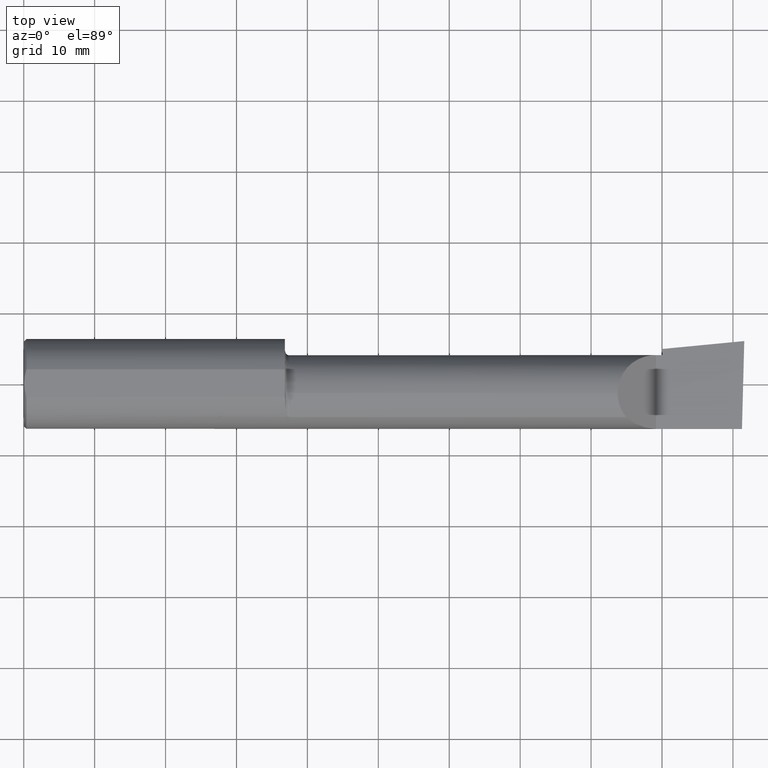
[diagram: clean part render]
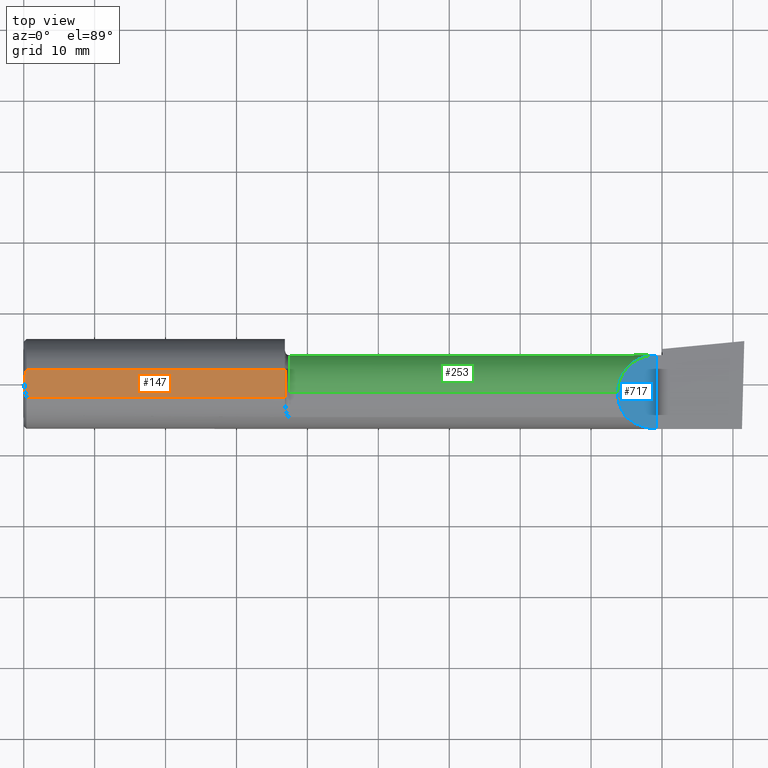
[diagram: same view with three faces highlighted in distinct colors, each labeled with its STEP entity id]
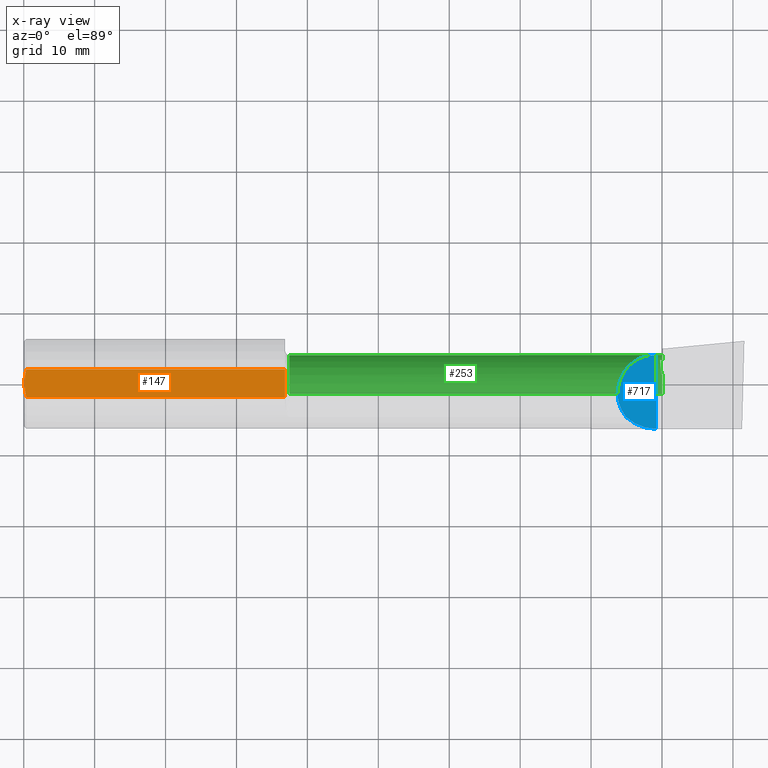
[diagram: x-ray of the same camera — body ghosted, the three highlighted faces saturated]
A machine part, top view with three faces highlighted in distinct colors.
The next image is the same camera in x-ray (body ghosted, the three faces saturated) — at least one of them is partly hidden behind the body in this view.
Their STEP definitions:

[orange] entity #147 — the highlighted planar face has unit normal (0, -0, -1).
#13 = EDGE_CURVE ( 'NONE', #714, #293, #352, .T. ) ;
#50 = VECTOR ( 'NONE', #787, 39.37007874015748143 ) ;
#51 = CARTESIAN_POINT ( 'NONE',  ( 0.000000000000000000, 0.07650098038587481442, 0.2378500000000000059 ) ) ;
#60 = DIRECTION ( 'NONE',  ( 0.000000000000000000, -1.000000000000000000, 1.138839417068643993E-16 ) ) ;
#67 = CARTESIAN_POINT ( 'NONE',  ( 0.01499999999999999771, 0.07650098038587481442, 0.2378500000000000059 ) ) ;
#86 = CARTESIAN_POINT ( 'NONE',  ( 1.450000900032402118, -0.05299999999999998462, 0.2378500000000221548 ) ) ;
#90 = VERTEX_POINT ( 'NONE', #702 ) ;
#92 = VECTOR ( 'NONE', #440, 39.37007874015748143 ) ;
#95 = CARTESIAN_POINT ( 'NONE',  ( 0.008199648822848978544, 0.05156445313451100965, 0.2378500000000000059 ) ) ;
#110 = ORIENTED_EDGE ( 'NONE', *, *, #270, .F. ) ;
#117 = CARTESIAN_POINT ( 'NONE',  ( 0.000000000000000000, -0.07650098038587477278, 0.2378500000000000059 ) ) ;
#120 = ORIENTED_EDGE ( 'NONE', *, *, #13, .F. ) ;
#147 = ADVANCED_FACE ( 'NONE', ( #708 ), #628, .F. ) ;
#150 = ORIENTED_EDGE ( 'NONE', *, *, #398, .F. ) ;
#155 = CARTESIAN_POINT ( 'NONE',  ( 0.003000000000000063380, 0.01299872814765622858, 0.2378499999999999226 ) ) ;
#164 = CARTESIAN_POINT ( 'NONE',  ( 1.450000900032402118, -0.05299999999999998462, 0.2378500000000221548 ) ) ;
#171 = CARTESIAN_POINT ( 'NONE',  ( 1.450000000000000178, -0.04503596074371483265, 0.2378500000000000059 ) ) ;
#184 = ORIENTED_EDGE ( 'NONE', *, *, #727, .F. ) ;
#188 = LINE ( 'NONE', #117, #92 ) ;
#203 = EDGE_CURVE ( 'NONE', #684, #90, #314, .T. ) ;
#211 = CARTESIAN_POINT ( 'NONE',  ( 0.01499999999998191669, -0.07650098038590480432, 0.2378500000000000059 ) ) ;
#213 = CARTESIAN_POINT ( 'NONE',  ( 0.008160184410935175658, -0.05138200716576606791, 0.2378500000000000336 ) ) ;
#217 = CARTESIAN_POINT ( 'NONE',  ( 0.004068542164723859197, -0.02585015905295368760, 0.2378499999999999226 ) ) ;
#219 = CARTESIAN_POINT ( 'NONE',  ( 0.003000000000000035624, 4.000210840755228160E-17, 0.2378500000000000059 ) ) ;
#232 = CARTESIAN_POINT ( 'NONE',  ( 1.450001800035618071, -0.04901601311796584953, 0.2378500024320483464 ) ) ;
#248 = VECTOR ( 'NONE', #439, 39.37007874015748143 ) ;
#270 = EDGE_CURVE ( 'NONE', #90, #714, #494, .T. ) ;
#281 = CARTESIAN_POINT ( 'NONE',  ( 0.003000000000000035624, 4.000210840755228160E-17, 0.2378500000000000059 ) ) ;
#293 = VERTEX_POINT ( 'NONE', #366 ) ;
#296 = VERTEX_POINT ( 'NONE', #619 ) ;
#314 = B_SPLINE_CURVE_WITH_KNOTS ( 'NONE', 3,
 ( #211, #344, #213, #217, #715, #281 ),
 .UNSPECIFIED., .F., .F.,
 ( 4, 2, 4 ),
 ( 0.002692677063605041030, 0.003672889278957893171, 0.004653101494310745746 ),
 .UNSPECIFIED. ) ;
#316 = EDGE_CURVE ( 'NONE', #293, #296, #796, .T. ) ;
#330 = CARTESIAN_POINT ( 'NONE',  ( 0.01499999999999999771, 0.07650098038587481442, 0.2378500000000000059 ) ) ;
#344 = CARTESIAN_POINT ( 'NONE',  ( 0.01120982745448978989, -0.06412238594540857484, 0.2378500000000000336 ) ) ;
#352 = LINE ( 'NONE', #51, #50 ) ;
#353 = CARTESIAN_POINT ( 'NONE',  ( 1.450001800093990489, -0.05698398688203849122, 0.2378499975680403167 ) ) ;
#360 = B_SPLINE_CURVE_WITH_KNOTS ( 'NONE', 3,
 ( #795, #171, #232, #738 ),
 .UNSPECIFIED., .F., .F.,
 ( 4, 4 ),
 ( 0.000000000000000000, 0.4999999999997267186 ),
 .UNSPECIFIED. ) ;
#366 = CARTESIAN_POINT ( 'NONE',  ( 1.450000000000000178, 0.07650098038587482829, 0.2378500000000000059 ) ) ;
#367 = ORIENTED_EDGE ( 'NONE', *, *, #203, .F. ) ;
#374 = CARTESIAN_POINT ( 'NONE',  ( 1.450000000000000178, -0.06494989539702619719, 0.2378500000000000059 ) ) ;
#385 = CARTESIAN_POINT ( 'NONE',  ( 1.450000000000000178, 0.2998500000000000609, 0.2378499999999999504 ) ) ;
#389 = CARTESIAN_POINT ( 'NONE',  ( 0.01120763235350239959, 0.06411521680875344187, 0.2378500000000000336 ) ) ;
#395 = CARTESIAN_POINT ( 'NONE',  ( 0.004092330037930641193, 0.02606142970188499164, 0.2378500000000000059 ) ) ;
#398 = EDGE_CURVE ( 'NONE', #486, #744, #476, .T. ) ;
#411 = CARTESIAN_POINT ( 'NONE',  ( 1.450000000000000178, -0.06494989539702619719, 0.2378500000000000059 ) ) ;
#435 = VERTEX_POINT ( 'NONE', #756 ) ;
#439 = DIRECTION ( 'NONE',  ( 0.000000000000000000, -1.000000000000000000, 1.138839417068643993E-16 ) ) ;
#440 = DIRECTION ( 'NONE',  ( -1.000000000000000000, -0.000000000000000000, -0.000000000000000000 ) ) ;
#458 = EDGE_CURVE ( 'NONE', #744, #435, #500, .T. ) ;
#464 = CARTESIAN_POINT ( 'NONE',  ( 0.01499999999998191669, -0.07650098038590480432, 0.2378500000000000059 ) ) ;
#476 = B_SPLINE_CURVE_WITH_KNOTS ( 'NONE', 3,
 ( #164, #353, #601, #411 ),
 .UNSPECIFIED., .F., .F.,
 ( 4, 4 ),
 ( 0.4999999999997267186, 1.000000000000000000 ),
 .UNSPECIFIED. ) ;
#484 = EDGE_LOOP ( 'NONE', ( #515, #120, #110, #367, #184, #612, #150, #682 ) ) ;
#486 = VERTEX_POINT ( 'NONE', #86 ) ;
#494 = B_SPLINE_CURVE_WITH_KNOTS ( 'NONE', 3,
 ( #219, #155, #395, #95, #389, #330 ),
 .UNSPECIFIED., .F., .F.,
 ( 4, 2, 4 ),
 ( 0.004653101494310745746, 0.005634627094920350784, 0.006616152695529954955 ),
 .UNSPECIFIED. ) ;
#500 = LINE ( 'NONE', #385, #248 ) ;
#515 = ORIENTED_EDGE ( 'NONE', *, *, #316, .F. ) ;
#570 = AXIS2_PLACEMENT_3D ( 'NONE', #748, #574, #624 ) ;
#574 = DIRECTION ( 'NONE',  ( 0.000000000000000000, -1.138839417068643993E-16, -1.000000000000000000 ) ) ;
#596 = CARTESIAN_POINT ( 'NONE',  ( 1.450000000000000178, 0.2998500000000000609, 0.2378499999999999504 ) ) ;
#601 = CARTESIAN_POINT ( 'NONE',  ( 1.450000000000000178, -0.06096394231309017891, 0.2378500000000000059 ) ) ;
#612 = ORIENTED_EDGE ( 'NONE', *, *, #458, .F. ) ;
#619 = CARTESIAN_POINT ( 'NONE',  ( 1.450000000000000178, -0.04105010460297373043, 0.2378500000000000059 ) ) ;
#624 = DIRECTION ( 'NONE',  ( 0.000000000000000000, 1.000000000000000000, -1.138839417068643993E-16 ) ) ;
#628 = PLANE ( 'NONE',  #570 ) ;
#669 = EDGE_CURVE ( 'NONE', #296, #486, #360, .T. ) ;
#682 = ORIENTED_EDGE ( 'NONE', *, *, #669, .F. ) ;
#684 = VERTEX_POINT ( 'NONE', #464 ) ;
#699 = VECTOR ( 'NONE', #60, 39.37007874015748143 ) ;
#702 = CARTESIAN_POINT ( 'NONE',  ( 0.003000000000000035624, 4.000210840755228160E-17, 0.2378500000000000059 ) ) ;
#708 = FACE_OUTER_BOUND ( 'NONE', #484, .T. ) ;
#714 = VERTEX_POINT ( 'NONE', #67 ) ;
#715 = CARTESIAN_POINT ( 'NONE',  ( 0.003000000000000061645, -0.01298133447204029636, 0.2378500000000000059 ) ) ;
#727 = EDGE_CURVE ( 'NONE', #435, #684, #188, .T. ) ;
#738 = CARTESIAN_POINT ( 'NONE',  ( 1.450000900032402118, -0.05299999999999998462, 0.2378500000000221548 ) ) ;
#744 = VERTEX_POINT ( 'NONE', #374 ) ;
#748 = CARTESIAN_POINT ( 'NONE',  ( 4.000000000000000000, 0.2998500000000000609, 0.2378499999999999504 ) ) ;
#756 = CARTESIAN_POINT ( 'NONE',  ( 1.450000000000000178, -0.07650098038590487370, 0.2378500000000000059 ) ) ;
#787 = DIRECTION ( 'NONE',  ( 1.000000000000000000, 0.000000000000000000, 0.000000000000000000 ) ) ;
#795 = CARTESIAN_POINT ( 'NONE',  ( 1.450000000000000178, -0.04105010460297373043, 0.2378500000000000059 ) ) ;
#796 = LINE ( 'NONE', #596, #699 ) ;

[blue] entity #717 — the highlighted planar face has unit normal (-0.7071, 0, -0.7071).
#1 = ORIENTED_EDGE ( 'NONE', *, *, #106, .T. ) ;
#2 = CARTESIAN_POINT ( 'NONE',  ( 3.344079160038590626, -0.1868028301886809628, 0.1659208399614071627 ) ) ;
#4 =( BOUNDED_CURVE ( )  B_SPLINE_CURVE ( 3, ( #99, #786, #346, #44 ),
 .UNSPECIFIED., .F., .T. ) 
 B_SPLINE_CURVE_WITH_KNOTS ( ( 4, 4 ),
 ( 4.712388980384687898, 5.438654041019562513 ),
 .UNSPECIFIED. ) 
 CURVE ( )  GEOMETRIC_REPRESENTATION_ITEM ( )  RATIONAL_B_SPLINE_CURVE ( ( 1.000000000000000000, 0.9565258159411005323, 0.9565258159411005323, 1.000000000000000000 ) ) 
 REPRESENTATION_ITEM ( '' )  );
#5 = AXIS2_PLACEMENT_3D ( 'NONE', #690, #260, #237 ) ;
#16 = DIRECTION ( 'NONE',  ( -0.000000000000000000, 1.000000000000000000, -0.000000000000000000 ) ) ;
#39 = CARTESIAN_POINT ( 'NONE',  ( 3.296849999999997394, 0.07186037918017490478, 0.2131499999999999229 ) ) ;
#44 = CARTESIAN_POINT ( 'NONE',  ( 3.344079160038590626, -0.1868028301886809628, 0.1659208399614071627 ) ) ;
#99 = CARTESIAN_POINT ( 'NONE',  ( 3.509999999999999787, -0.2498499999999999610, -6.245698675651499853E-17 ) ) ;
#106 = EDGE_CURVE ( 'NONE', #365, #603, #560, .T. ) ;
#118 = VERTEX_POINT ( 'NONE', #384 ) ;
#161 = CARTESIAN_POINT ( 'NONE',  ( 3.296849999999997394, -0.05299999999999998462, 0.2131499999999999229 ) ) ;
#193 =( BOUNDED_CURVE ( )  B_SPLINE_CURVE ( 3, ( #161, #39, #477, #401 ),
 .UNSPECIFIED., .F., .T. ) 
 B_SPLINE_CURVE_WITH_KNOTS ( ( 4, 4 ),
 ( 0.000000000000000000, 1.570796326794898112 ),
 .UNSPECIFIED. ) 
 CURVE ( )  GEOMETRIC_REPRESENTATION_ITEM ( )  RATIONAL_B_SPLINE_CURVE ( ( 1.000000000000000000, 0.8047378541243646044, 0.8047378541243646044, 1.000000000000000000 ) ) 
 REPRESENTATION_ITEM ( '' )  );
#220 = ORIENTED_EDGE ( 'NONE', *, *, #704, .F. ) ;
#237 = DIRECTION ( 'NONE',  ( -0.7071067811865511255, 0.000000000000000000, 0.7071067811865439090 ) ) ;
#241 = CARTESIAN_POINT ( 'NONE',  ( 3.296849999999996061, -0.1021668565906577175, 0.2131499999999998951 ) ) ;
#260 = DIRECTION ( 'NONE',  ( -0.7071067811865439090, 0.000000000000000000, -0.7071067811865511255 ) ) ;
#287 = CARTESIAN_POINT ( 'NONE',  ( 3.313215146136122335, -0.1485302233682073147, 0.1967848538638751199 ) ) ;
#345 = EDGE_CURVE ( 'NONE', #448, #118, #664, .T. ) ;
#346 = CARTESIAN_POINT ( 'NONE',  ( 3.390325100969867389, -0.2278791102234781485, 0.1196748990301310239 ) ) ;
#357 = ORIENTED_EDGE ( 'NONE', *, *, #662, .F. ) ;
#365 = VERTEX_POINT ( 'NONE', #394 ) ;
#384 = CARTESIAN_POINT ( 'NONE',  ( 3.296849999999997394, -0.05299999999999998462, 0.2131499999999999229 ) ) ;
#394 = CARTESIAN_POINT ( 'NONE',  ( 3.509999999999999787, -0.2498499999999999610, -6.245698675651499853E-17 ) ) ;
#401 = CARTESIAN_POINT ( 'NONE',  ( 3.509999999999999787, 0.1601499999999999035, -6.245698675651499853E-17 ) ) ;
#431 = PLANE ( 'NONE',  #5 ) ;
#432 = VECTOR ( 'NONE', #16, 39.37007874015748143 ) ;
#448 = VERTEX_POINT ( 'NONE', #634 ) ;
#468 = CARTESIAN_POINT ( 'NONE',  ( 3.509999999999999787, 0.1601499999999999035, -6.245698675651499853E-17 ) ) ;
#477 = CARTESIAN_POINT ( 'NONE',  ( 3.385139620819825446, 0.1601500000000000978, 0.1248603791801745772 ) ) ;
#560 = LINE ( 'NONE', #565, #432 ) ;
#565 = CARTESIAN_POINT ( 'NONE',  ( 3.509999999999999787, -0.2500000000000000555, -6.245698675651499853E-17 ) ) ;
#595 = EDGE_LOOP ( 'NONE', ( #752, #220, #1, #357 ) ) ;
#603 = VERTEX_POINT ( 'NONE', #468 ) ;
#617 = FACE_OUTER_BOUND ( 'NONE', #595, .T. ) ;
#634 = CARTESIAN_POINT ( 'NONE',  ( 3.344079160038590626, -0.1868028301886809628, 0.1659208399614071627 ) ) ;
#662 = EDGE_CURVE ( 'NONE', #118, #603, #193, .T. ) ;
#664 =( BOUNDED_CURVE ( )  B_SPLINE_CURVE ( 3, ( #2, #287, #241, #735 ),
 .UNSPECIFIED., .F., .T. ) 
 B_SPLINE_CURVE_WITH_KNOTS ( ( 4, 4 ),
 ( 5.604538515477337057, 6.283185307179586232 ),
 .UNSPECIFIED. ) 
 CURVE ( )  GEOMETRIC_REPRESENTATION_ITEM ( )  RATIONAL_B_SPLINE_CURVE ( ( 1.000000000000000000, 0.9619867256453012994, 0.9619867256453012994, 1.000000000000000000 ) ) 
 REPRESENTATION_ITEM ( '' )  );
#690 = CARTESIAN_POINT ( 'NONE',  ( 3.509999999999999787, -0.2500000000000000555, -6.245698675651499853E-17 ) ) ;
#704 = EDGE_CURVE ( 'NONE', #365, #448, #4, .T. ) ;
#717 = ADVANCED_FACE ( 'NONE', ( #617 ), #431, .F. ) ;
#735 = CARTESIAN_POINT ( 'NONE',  ( 3.296849999999997394, -0.05299999999999998462, 0.2131499999999999229 ) ) ;
#752 = ORIENTED_EDGE ( 'NONE', *, *, #345, .F. ) ;
#786 = CARTESIAN_POINT ( 'NONE',  ( 3.448145753305724259, -0.2498500000000001275, 0.06185424669427382061 ) ) ;

[green] entity #253 — the highlighted cylindrical surface (partial cylindrical patch) has radius 5.414 mm, axis along (-1, -0, -0).
#9 = CARTESIAN_POINT ( 'NONE',  ( 3.532795049205047722, 0.1343794326159069574, -0.1015966078791044752 ) ) ;
#27 = LINE ( 'NONE', #269, #102 ) ;
#39 = CARTESIAN_POINT ( 'NONE',  ( 3.296849999999997394, 0.07186037918017490478, 0.2131499999999999229 ) ) ;
#40 = DIRECTION ( 'NONE',  ( 0.000000000000000000, 0.000000000000000000, 1.000000000000000000 ) ) ;
#56 = EDGE_CURVE ( 'NONE', #667, #368, #304, .T. ) ;
#59 = ORIENTED_EDGE ( 'NONE', *, *, #285, .T. ) ;
#62 = CARTESIAN_POINT ( 'NONE',  ( 3.536975816846328780, 0.1338694103809222047, -0.1025372660271281627 ) ) ;
#63 = AXIS2_PLACEMENT_3D ( 'NONE', #381, #759, #499 ) ;
#68 = EDGE_CURVE ( 'NONE', #529, #170, #543, .T. ) ;
#72 = ORIENTED_EDGE ( 'NONE', *, *, #68, .F. ) ;
#74 = CARTESIAN_POINT ( 'NONE',  ( 3.545000000000000373, 0.1328281892403430364, -0.1044069278527783584 ) ) ;
#77 = CARTESIAN_POINT ( 'NONE',  ( 0.000000000000000000, -0.05299999999999998462, 0.2131499999999999229 ) ) ;
#102 = VECTOR ( 'NONE', #513, 39.37007874015748143 ) ;
#113 = ORIENTED_EDGE ( 'NONE', *, *, #527, .F. ) ;
#118 = VERTEX_POINT ( 'NONE', #384 ) ;
#139 =( BOUNDED_CURVE ( )  B_SPLINE_CURVE ( 3, ( #9, #246, #749, #187 ),
 .UNSPECIFIED., .F., .T. ) 
 B_SPLINE_CURVE_WITH_KNOTS ( ( 4, 4 ),
 ( 0.4968328636548220434, 1.034445644973937206 ),
 .UNSPECIFIED. ) 
 CURVE ( )  GEOMETRIC_REPRESENTATION_ITEM ( )  RATIONAL_B_SPLINE_CURVE ( ( 1.000000000000000000, 0.9760590552538852549, 0.9760590552538852549, 1.000000000000000000 ) ) 
 REPRESENTATION_ITEM ( '' )  );
#157 = CARTESIAN_POINT ( 'NONE',  ( 3.544999999999999929, -0.05299999999999998462, -0.2131499999999999229 ) ) ;
#161 = CARTESIAN_POINT ( 'NONE',  ( 3.296849999999997394, -0.05299999999999998462, 0.2131499999999999229 ) ) ;
#168 = ORIENTED_EDGE ( 'NONE', *, *, #642, .T. ) ;
#170 = VERTEX_POINT ( 'NONE', #524 ) ;
#187 = CARTESIAN_POINT ( 'NONE',  ( 3.540349815208491790, 0.05592018782259830512, -0.1832193089843147382 ) ) ;
#193 =( BOUNDED_CURVE ( )  B_SPLINE_CURVE ( 3, ( #161, #39, #477, #401 ),
 .UNSPECIFIED., .F., .T. ) 
 B_SPLINE_CURVE_WITH_KNOTS ( ( 4, 4 ),
 ( 0.000000000000000000, 1.570796326794898112 ),
 .UNSPECIFIED. ) 
 CURVE ( )  GEOMETRIC_REPRESENTATION_ITEM ( )  RATIONAL_B_SPLINE_CURVE ( ( 1.000000000000000000, 0.8047378541243646044, 0.8047378541243646044, 1.000000000000000000 ) ) 
 REPRESENTATION_ITEM ( '' )  );
#194 = CARTESIAN_POINT ( 'NONE',  ( 3.541916792879878262, 0.05627666367902792871, -0.1830073912696822680 ) ) ;
#198 = CARTESIAN_POINT ( 'NONE',  ( 3.544999999999999929, 0.05698775240724700958, -0.1825804393148460492 ) ) ;
#199 = VERTEX_POINT ( 'NONE', #206 ) ;
#206 = CARTESIAN_POINT ( 'NONE',  ( 1.474999999999999867, -0.05299999999999998462, 0.2131499999999997008 ) ) ;
#224 = ORIENTED_EDGE ( 'NONE', *, *, #773, .F. ) ;
#228 = CARTESIAN_POINT ( 'NONE',  ( 3.544999999999999929, 0.1601500000000001256, 4.685946446163641620E-16 ) ) ;
#246 = CARTESIAN_POINT ( 'NONE',  ( 3.534569588231498471, 0.1159501401920711161, -0.1355866241796522820 ) ) ;
#249 = VERTEX_POINT ( 'NONE', #157 ) ;
#253 = ADVANCED_FACE ( 'NONE', ( #462 ), #592, .T. ) ;
#266 = CARTESIAN_POINT ( 'NONE',  ( 3.540349815208491790, 0.05592018782259830512, -0.1832193089843147382 ) ) ;
#269 = CARTESIAN_POINT ( 'NONE',  ( 7.089685198749692867E-32, 0.1601499999999999035, 4.685946446163635703E-16 ) ) ;
#285 = EDGE_CURVE ( 'NONE', #603, #667, #27, .T. ) ;
#294 = DIRECTION ( 'NONE',  ( 0.000000000000000000, 0.000000000000000000, 1.000000000000000000 ) ) ;
#304 = CIRCLE ( 'NONE', #63, 0.2131500000000001172 ) ;
#339 = VECTOR ( 'NONE', #666, 39.37007874015748143 ) ;
#356 = CARTESIAN_POINT ( 'NONE',  ( 3.545000000000000373, 0.1328281892403430364, -0.1044069278527783584 ) ) ;
#359 = CIRCLE ( 'NONE', #393, 0.2131500000000001172 ) ;
#368 = VERTEX_POINT ( 'NONE', #356 ) ;
#375 = EDGE_CURVE ( 'NONE', #249, #689, #785, .T. ) ;
#381 = CARTESIAN_POINT ( 'NONE',  ( 3.544999999999999929, -0.05299999999999998462, 0.000000000000000000 ) ) ;
#384 = CARTESIAN_POINT ( 'NONE',  ( 3.296849999999997394, -0.05299999999999998462, 0.2131499999999999229 ) ) ;
#391 = ORIENTED_EDGE ( 'NONE', *, *, #662, .T. ) ;
#393 = AXIS2_PLACEMENT_3D ( 'NONE', #733, #781, #294 ) ;
#401 = CARTESIAN_POINT ( 'NONE',  ( 3.509999999999999787, 0.1601499999999999035, -6.245698675651499853E-17 ) ) ;
#442 = DIRECTION ( 'NONE',  ( -1.000000000000000000, -0.000000000000000000, -0.000000000000000000 ) ) ;
#444 =( BOUNDED_CURVE ( )  B_SPLINE_CURVE ( 3, ( #743, #62, #563, #74 ),
 .UNSPECIFIED., .F., .T. ) 
 B_SPLINE_CURVE_WITH_KNOTS ( ( 4, 4 ),
 ( 2.868174658477177896, 2.883234730632702192 ),
 .UNSPECIFIED. ) 
 CURVE ( )  GEOMETRIC_REPRESENTATION_ITEM ( )  RATIONAL_B_SPLINE_CURVE ( ( 1.000000000000000000, 0.9999810996081960335, 0.9999810996081960335, 1.000000000000000000 ) ) 
 REPRESENTATION_ITEM ( '' )  );
#457 = EDGE_LOOP ( 'NONE', ( #168, #580, #732, #113, #391, #59, #734, #224, #790, #72 ) ) ;
#462 = FACE_OUTER_BOUND ( 'NONE', #457, .T. ) ;
#463 = CARTESIAN_POINT ( 'NONE',  ( 1.474999999999999867, -0.05299999999999998462, 0.000000000000000000 ) ) ;
#468 = CARTESIAN_POINT ( 'NONE',  ( 3.509999999999999787, 0.1601499999999999035, -6.245698675651499853E-17 ) ) ;
#477 = CARTESIAN_POINT ( 'NONE',  ( 3.385139620819825446, 0.1601500000000000978, 0.1248603791801745772 ) ) ;
#499 = DIRECTION ( 'NONE',  ( 0.000000000000000000, 0.000000000000000000, 1.000000000000000000 ) ) ;
#513 = DIRECTION ( 'NONE',  ( 1.000000000000000000, 0.000000000000000000, 0.000000000000000000 ) ) ;
#524 = CARTESIAN_POINT ( 'NONE',  ( 3.540349815208491790, 0.05592018782259830512, -0.1832193089843147382 ) ) ;
#527 = EDGE_CURVE ( 'NONE', #118, #199, #555, .T. ) ;
#529 = VERTEX_POINT ( 'NONE', #198 ) ;
#534 = EDGE_CURVE ( 'NONE', #620, #170, #139, .T. ) ;
#543 =( BOUNDED_CURVE ( )  B_SPLINE_CURVE ( 3, ( #700, #755, #194, #266 ),
 .UNSPECIFIED., .F., .T. ) 
 B_SPLINE_CURVE_WITH_KNOTS ( ( 4, 4 ),
 ( 3.399950576546886705, 3.405787439796291505 ),
 .UNSPECIFIED. ) 
 CURVE ( )  GEOMETRIC_REPRESENTATION_ITEM ( )  RATIONAL_B_SPLINE_CURVE ( ( 1.000000000000000000, 0.9999971609209656886, 0.9999971609209656886, 1.000000000000000000 ) ) 
 REPRESENTATION_ITEM ( '' )  );
#555 = LINE ( 'NONE', #77, #707 ) ;
#563 = CARTESIAN_POINT ( 'NONE',  ( 3.541044210672214643, 0.1333523194825134983, -0.1034740570574036456 ) ) ;
#580 = ORIENTED_EDGE ( 'NONE', *, *, #375, .T. ) ;
#588 = CARTESIAN_POINT ( 'NONE',  ( 0.000000000000000000, -0.05299999999999998462, 0.000000000000000000 ) ) ;
#590 = EDGE_CURVE ( 'NONE', #199, #689, #678, .T. ) ;
#591 = CARTESIAN_POINT ( 'NONE',  ( 3.532795049205047722, 0.1343794326159069574, -0.1015966078791044752 ) ) ;
#592 = CYLINDRICAL_SURFACE ( 'NONE', #631, 0.2131499999999999229 ) ;
#594 = AXIS2_PLACEMENT_3D ( 'NONE', #463, #597, #778 ) ;
#597 = DIRECTION ( 'NONE',  ( -1.000000000000000000, -0.000000000000000000, -0.000000000000000000 ) ) ;
#603 = VERTEX_POINT ( 'NONE', #468 ) ;
#620 = VERTEX_POINT ( 'NONE', #591 ) ;
#631 = AXIS2_PLACEMENT_3D ( 'NONE', #588, #718, #40 ) ;
#642 = EDGE_CURVE ( 'NONE', #529, #249, #359, .T. ) ;
#662 = EDGE_CURVE ( 'NONE', #118, #603, #193, .T. ) ;
#666 = DIRECTION ( 'NONE',  ( -1.000000000000000000, -0.000000000000000000, -0.000000000000000000 ) ) ;
#667 = VERTEX_POINT ( 'NONE', #228 ) ;
#668 = CARTESIAN_POINT ( 'NONE',  ( 1.474999999999999867, -0.05299999999999996381, -0.2131499999999997008 ) ) ;
#675 = CARTESIAN_POINT ( 'NONE',  ( 0.000000000000000000, -0.05299999999999996381, -0.2131499999999999229 ) ) ;
#678 = CIRCLE ( 'NONE', #594, 0.2131499999999997008 ) ;
#689 = VERTEX_POINT ( 'NONE', #668 ) ;
#700 = CARTESIAN_POINT ( 'NONE',  ( 3.544999999999999929, 0.05698775240724700958, -0.1825804393148460492 ) ) ;
#707 = VECTOR ( 'NONE', #442, 39.37007874015748143 ) ;
#718 = DIRECTION ( 'NONE',  ( -1.000000000000000000, -0.000000000000000000, -0.000000000000000000 ) ) ;
#732 = ORIENTED_EDGE ( 'NONE', *, *, #590, .F. ) ;
#733 = CARTESIAN_POINT ( 'NONE',  ( 3.544999999999999929, -0.05299999999999998462, 0.000000000000000000 ) ) ;
#734 = ORIENTED_EDGE ( 'NONE', *, *, #56, .T. ) ;
#743 = CARTESIAN_POINT ( 'NONE',  ( 3.532795049205047722, 0.1343794326159069574, -0.1015966078791044752 ) ) ;
#749 = CARTESIAN_POINT ( 'NONE',  ( 3.537149611766882806, 0.08915557130098397676, -0.1634615431086028081 ) ) ;
#755 = CARTESIAN_POINT ( 'NONE',  ( 3.543466858877806214, 0.05663251955088037526, -0.1827944341085903923 ) ) ;
#759 = DIRECTION ( 'NONE',  ( -1.000000000000000000, -0.000000000000000000, -0.000000000000000000 ) ) ;
#773 = EDGE_CURVE ( 'NONE', #620, #368, #444, .T. ) ;
#778 = DIRECTION ( 'NONE',  ( 0.000000000000000000, 0.000000000000000000, 1.000000000000000000 ) ) ;
#781 = DIRECTION ( 'NONE',  ( -1.000000000000000000, -0.000000000000000000, -0.000000000000000000 ) ) ;
#785 = LINE ( 'NONE', #675, #339 ) ;
#790 = ORIENTED_EDGE ( 'NONE', *, *, #534, .T. ) ;